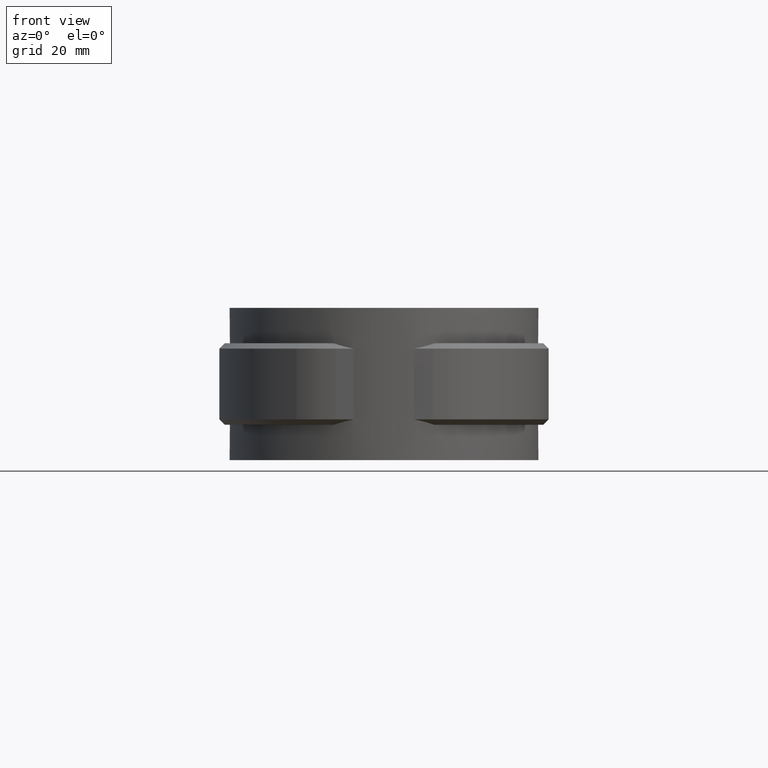
[diagram: clean part render]
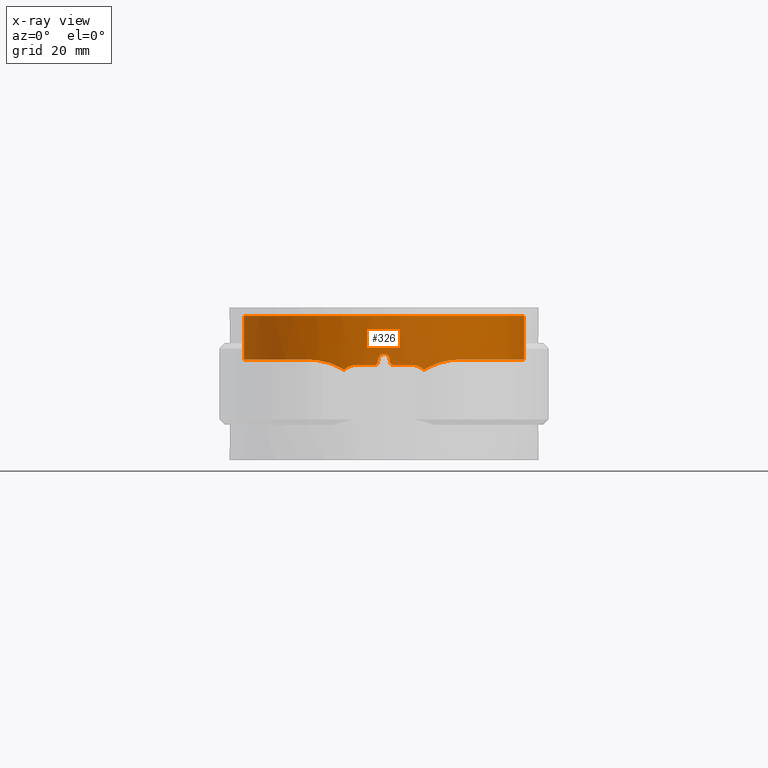
[diagram: x-ray — body ghosted, one internal face saturated and labeled with its STEP entity id]
A machine part, front view, then the same camera in x-ray: the body is ghosted and one INTERNAL B-rep face — a face not visible from any outside direction — is saturated and labeled: STEP entity #326.
In plain terms, the highlighted cylindrical surface (partial cylindrical patch) has radius 25.8 mm, axis along (0, 0, 1).
Its self-contained STEP definition (entity closure, byte-faithful):
#326 = ADVANCED_FACE( '', ( #575 ), #576, .F. );
#575 = FACE_OUTER_BOUND( '', #1265, .T. );
#576 = CYLINDRICAL_SURFACE( '', #1266, 25.8000000000000 );
#1265 = EDGE_LOOP( '', ( #2530, #2531, #2532, #2533, #2534, #2535, #2536, #2537, #2538, #2539, #2540, #2541, #2542, #2543, #2544, #2545, #2546, #2547 ) );
#1266 = AXIS2_PLACEMENT_3D( '', #2548, #2549, #2550 );
#2530 = ORIENTED_EDGE( '', *, *, #5572, .T. );
#2531 = ORIENTED_EDGE( '', *, *, #5537, .T. );
#2532 = ORIENTED_EDGE( '', *, *, #5539, .T. );
#2533 = ORIENTED_EDGE( '', *, *, #5573, .T. );
#2534 = ORIENTED_EDGE( '', *, *, #5574, .T. );
#2535 = ORIENTED_EDGE( '', *, *, #5575, .T. );
#2536 = ORIENTED_EDGE( '', *, *, #5576, .T. );
#2537 = ORIENTED_EDGE( '', *, *, #5577, .T. );
#2538 = ORIENTED_EDGE( '', *, *, #5578, .T. );
#2539 = ORIENTED_EDGE( '', *, *, #5579, .T. );
#2540 = ORIENTED_EDGE( '', *, *, #5580, .T. );
#2541 = ORIENTED_EDGE( '', *, *, #5581, .T. );
#2542 = ORIENTED_EDGE( '', *, *, #5559, .T. );
#2543 = ORIENTED_EDGE( '', *, *, #5582, .F. );
#2544 = ORIENTED_EDGE( '', *, *, #5524, .T. );
#2545 = ORIENTED_EDGE( '', *, *, #5583, .T. );
#2546 = ORIENTED_EDGE( '', *, *, #5555, .T. );
#2547 = ORIENTED_EDGE( '', *, *, #5567, .T. );
#2548 = CARTESIAN_POINT( '', ( 0.000000000000000, 0.000000000000000, 0.000000000000000 ) );
#2549 = DIRECTION( '', ( 0.000000000000000, 0.000000000000000, 1.00000000000000 ) );
#2550 = DIRECTION( '', ( 1.00000000000000, -6.12303176911189E-017, 0.000000000000000 ) );
#5524 = EDGE_CURVE( '', #6208, #6206, #6209, .T. );
#5537 = EDGE_CURVE( '', #6214, #6231, #6233, .T. );
#5539 = EDGE_CURVE( '', #6231, #6234, #6236, .T. );
#5555 = EDGE_CURVE( '', #6264, #6262, #6265, .T. );
#5559 = EDGE_CURVE( '', #6271, #6272, #6273, .T. );
#5567 = EDGE_CURVE( '', #6262, #6285, #6287, .T. );
#5572 = EDGE_CURVE( '', #6285, #6214, #6295, .T. );
#5573 = EDGE_CURVE( '', #6234, #6296, #6297, .T. );
#5574 = EDGE_CURVE( '', #6296, #6298, #6299, .T. );
#5575 = EDGE_CURVE( '', #6298, #6300, #6301, .T. );
#5576 = EDGE_CURVE( '', #6300, #6302, #6303, .T. );
#5577 = EDGE_CURVE( '', #6302, #6304, #6305, .T. );
#5578 = EDGE_CURVE( '', #6304, #6306, #6307, .T. );
#5579 = EDGE_CURVE( '', #6306, #6308, #6309, .T. );
#5580 = EDGE_CURVE( '', #6308, #6310, #6311, .T. );
#5581 = EDGE_CURVE( '', #6310, #6271, #6312, .T. );
#5582 = EDGE_CURVE( '', #6208, #6272, #6313, .T. );
#5583 = EDGE_CURVE( '', #6206, #6264, #6314, .T. );
#6206 = VERTEX_POINT( '', #7462 );
#6208 = VERTEX_POINT( '', #7464 );
#6209 = CIRCLE( '', #7465, 25.8000000000000 );
#6214 = VERTEX_POINT( '', #7471 );
#6231 = VERTEX_POINT( '', #7545 );
#6233 = B_SPLINE_CURVE_WITH_KNOTS( '', 3, ( #7548, #7549, #7550, #7551, #7552, #7553, #7554, #7555, #7556, #7557 ), .UNSPECIFIED., .F., .F., ( 4, 2, 2, 2, 4 ), ( 0.00847385294775890, 0.00913614341819713, 0.00979843388863536, 0.0104607243590736, 0.0111230148295118 ), .UNSPECIFIED. );
#6234 = VERTEX_POINT( '', #7558 );
#6236 = CIRCLE( '', #7561, 25.8000000000000 );
#6262 = VERTEX_POINT( '', #7847 );
#6264 = VERTEX_POINT( '', #7855 );
#6265 = B_SPLINE_CURVE_WITH_KNOTS( '', 3, ( #7856, #7857, #7858, #7859, #7860, #7861, #7862, #7863, #7864, #7865, #7866, #7867, #7868, #7869, #7870, #7871, #7872, #7873, #7874, #7875, #7876, #7877, #7878, #7879, #7880, #7881, #7882, #7883, #7884, #7885, #7886, #7887, #7888, #7889, #7890, #7891, #7892, #7893, #7894, #7895, #7896, #7897, #7898, #7899, #7900, #7901 ), .UNSPECIFIED., .F., .F., ( 4, 2, 2, 2, 2, 2, 2, 2, 2, 2, 2, 2, 2, 2, 2, 2, 2, 2, 2, 2, 2, 2, 4 ), ( 3.46944695195361E-018, 0.00373618031947293, 0.00747236063894587, 0.00934045079868233, 0.0112085409584188, 0.0149447212778917, 0.0168128114376282, 0.0186809015973647, 0.0224170819168376, 0.0242851720765741, 0.0261532622363106, 0.0298894425557836, 0.0336256228752565, 0.0354937130349930, 0.0373618031947295, 0.0410979835142024, 0.0429660736739389, 0.0448341638336754, 0.0485703441531484, 0.0504384343128848, 0.0523065244726213, 0.0560427047920943, 0.0597788851115672 ), .UNSPECIFIED. );
#6271 = VERTEX_POINT( '', #7937 );
#6272 = VERTEX_POINT( '', #7938 );
#6273 = B_SPLINE_CURVE_WITH_KNOTS( '', 3, ( #7939, #7940, #7941, #7942, #7943, #7944, #7945, #7946, #7947, #7948, #7949, #7950, #7951, #7952, #7953, #7954, #7955, #7956, #7957, #7958, #7959, #7960, #7961, #7962, #7963, #7964, #7965, #7966, #7967, #7968, #7969, #7970, #7971, #7972, #7973, #7974, #7975, #7976, #7977, #7978, #7979, #7980, #7981, #7982, #7983, #7984 ), .UNSPECIFIED., .F., .F., ( 4, 2, 2, 2, 2, 2, 2, 2, 2, 2, 2, 2, 2, 2, 2, 2, 2, 2, 2, 2, 2, 2, 4 ), ( 9.81307786677359E-018, 0.00373617763623475, 0.00747235527246950, 0.00934044409058687, 0.0112085329087042, 0.0149447105449390, 0.0168127993630564, 0.0186808881811737, 0.0224170658174085, 0.0242851546355259, 0.0261532434536433, 0.0298894210898780, 0.0336255987261128, 0.0354936875442301, 0.0373617763623475, 0.0410979539985822, 0.0429660428166996, 0.0448341316348170, 0.0485703092710517, 0.0504383980891691, 0.0523064869072865, 0.0560426645435212, 0.0597788421797560 ), .UNSPECIFIED. );
#6285 = VERTEX_POINT( '', #8081 );
#6287 = B_SPLINE_CURVE_WITH_KNOTS( '', 3, ( #8087, #8088, #8089, #8090, #8091, #8092, #8093, #8094, #8095, #8096 ), .UNSPECIFIED., .F., .F., ( 4, 2, 2, 2, 4 ), ( 0.000000000000000, 0.00171733910747662, 0.00343467821495323, 0.00515201732242985, 0.00686935642990647 ), .UNSPECIFIED. );
#6295 = B_SPLINE_CURVE_WITH_KNOTS( '', 3, ( #8125, #8126, #8127, #8128 ), .UNSPECIFIED., .F., .F., ( 4, 4 ), ( 7.11061015606816E-016, 0.000883886196938729 ), .UNSPECIFIED. );
#6296 = VERTEX_POINT( '', #8129 );
#6297 = B_SPLINE_CURVE_WITH_KNOTS( '', 3, ( #8130, #8131, #8132, #8133, #8134, #8135 ), .UNSPECIFIED., .F., .F., ( 4, 2, 4 ), ( 8.20849171219253E-018, 0.000336076006616285, 0.000672152013232562 ), .UNSPECIFIED. );
#6298 = VERTEX_POINT( '', #8136 );
#6299 = ELLIPSE( '', #8137, 117.533393289804, 25.8000000000000 );
#6300 = VERTEX_POINT( '', #8138 );
#6301 = B_SPLINE_CURVE_WITH_KNOTS( '', 3, ( #8139, #8140, #8141, #8142, #8143, #8144, #8145, #8146, #8147, #8148 ), .UNSPECIFIED., .F., .F., ( 4, 2, 2, 2, 4 ), ( 1.08420217248550E-019, 0.000671617565681660, 0.00134323513136332, 0.00201485269704498, 0.00268647026272664 ), .UNSPECIFIED. );
#6302 = VERTEX_POINT( '', #8149 );
#6303 = ELLIPSE( '', #8150, 117.533453246316, 25.8000000000000 );
#6304 = VERTEX_POINT( '', #8151 );
#6305 = B_SPLINE_CURVE_WITH_KNOTS( '', 3, ( #8152, #8153, #8154, #8155, #8156, #8157 ), .UNSPECIFIED., .F., .F., ( 4, 2, 4 ), ( 2.04566856771261E-018, 0.000336081783648389, 0.000672163567296775 ), .UNSPECIFIED. );
#6306 = VERTEX_POINT( '', #8158 );
#6307 = CIRCLE( '', #8159, 25.8000000000000 );
#6308 = VERTEX_POINT( '', #8160 );
#6309 = B_SPLINE_CURVE_WITH_KNOTS( '', 3, ( #8161, #8162, #8163, #8164, #8165, #8166, #8167, #8168, #8169, #8170 ), .UNSPECIFIED., .F., .F., ( 4, 2, 2, 2, 4 ), ( 2.60208521396521E-018, 0.000662919875601351, 0.00132583975120270, 0.00198875962680405, 0.00265167950240540 ), .UNSPECIFIED. );
#6310 = VERTEX_POINT( '', #8171 );
#6311 = B_SPLINE_CURVE_WITH_KNOTS( '', 3, ( #8172, #8173, #8174, #8175 ), .UNSPECIFIED., .F., .F., ( 4, 4 ), ( 0.00814114400030311, 0.00902205076331049 ), .UNSPECIFIED. );
#6312 = B_SPLINE_CURVE_WITH_KNOTS( '', 3, ( #8176, #8177, #8178, #8179, #8180, #8181, #8182, #8183, #8184, #8185 ), .UNSPECIFIED., .F., .F., ( 4, 2, 2, 2, 4 ), ( 0.000000000000000, 0.00170899834983024, 0.00341799669966047, 0.00512699504949071, 0.00683599339932094 ), .UNSPECIFIED. );
#6313 = LINE( '', #8186, #8187 );
#6314 = LINE( '', #8188, #8189 );
#7462 = CARTESIAN_POINT( '', ( 6.03237410071943, 25.0848652120949, 0.000000000000000 ) );
#7464 = CARTESIAN_POINT( '', ( -6.03237410071944, 25.0848652120949, 0.000000000000000 ) );
#7465 = AXIS2_PLACEMENT_3D( '', #11178, #11179, #11180 );
#7471 = CARTESIAN_POINT( '', ( 7.36770156713656, -24.7256339376286, -9.92240629870049 ) );
#7545 = CARTESIAN_POINT( '', ( 5.00000000000000, -25.3108672312902, -9.00000000000000 ) );
#7548 = CARTESIAN_POINT( '', ( 7.36770156713660, -24.7256339376286, -9.92240629870043 ) );
#7549 = CARTESIAN_POINT( '', ( 7.20768725923874, -24.7733147238943, -9.77542187389251 ) );
#7550 = CARTESIAN_POINT( '', ( 7.03611587404372, -24.8227539171649, -9.64504375721799 ) );
#7551 = CARTESIAN_POINT( '', ( 6.67007827215876, -24.9236051659540, -9.41659578297038 ) );
#7552 = CARTESIAN_POINT( '', ( 6.47382625859016, -24.9754378902383, -9.31811712369700 ) );
#7553 = CARTESIAN_POINT( '', ( 6.07189689829047, -25.0761837665163, -9.16120088677748 ) );
#7554 = CARTESIAN_POINT( '', ( 5.86504202007062, -25.1254630968022, -9.10166789016048 ) );
#7555 = CARTESIAN_POINT( '', ( 5.43923193058691, -25.2210699561150, -9.02091475580043 ) );
#7556 = CARTESIAN_POINT( '', ( 5.21976287136961, -25.2674544810748, -8.99999999999997 ) );
#7557 = CARTESIAN_POINT( '', ( 5.00000000000000, -25.3108672312902, -8.99999999999997 ) );
#7558 = CARTESIAN_POINT( '', ( 1.64999999999995, -25.7471843120758, -9.00000000000000 ) );
#7561 = AXIS2_PLACEMENT_3D( '', #11188, #11189, #11190 );
#7847 = CARTESIAN_POINT( '', ( 14.0746045988059, -21.6228005907485, -8.00316201356002 ) );
#7855 = CARTESIAN_POINT( '', ( 6.03237410071944, 25.0848652120949, -8.00421859647345 ) );
#7856 = CARTESIAN_POINT( '', ( 6.03237410071942, 25.0848652120949, -8.00421859647343 ) );
#7857 = CARTESIAN_POINT( '', ( 7.26068028571261, 24.7894838195517, -8.00544838312871 ) );
#7858 = CARTESIAN_POINT( '', ( 8.45213205266304, 24.4080579795106, -8.00701797057330 ) );
#7859 = CARTESIAN_POINT( '', ( 10.7643649610826, 23.4802103387390, -8.00789522628143 ) );
#7860 = CARTESIAN_POINT( '', ( 11.8851383455205, 22.9337704286318, -8.00721043540803 ) );
#7861 = CARTESIAN_POINT( '', ( 13.5121261110203, 21.9876336346415, -8.00533507802577 ) );
#7862 = CARTESIAN_POINT( '', ( 14.0475094696409, 21.6495534350301, -8.00459736652658 ) );
#7863 = CARTESIAN_POINT( '', ( 15.0858771380485, 20.9392453830500, -8.00344518684758 ) );
#7864 = CARTESIAN_POINT( '', ( 15.5893780365250, 20.5669859111848, -8.00307121611898 ) );
#7865 = CARTESIAN_POINT( '', ( 17.0539102108764, 19.4000673881720, -8.00324725469724 ) );
#7866 = CARTESIAN_POINT( '', ( 17.9692068879716, 18.5555254471872, -8.00456444818308 ) );
#7867 = CARTESIAN_POINT( '', ( 19.2504369275996, 17.1886782009989, -8.00562225454128 ) );
#7868 = CARTESIAN_POINT( '', ( 19.6621689044348, 16.7163258541374, -8.00584695541366 ) );
#7869 = CARTESIAN_POINT( '', ( 20.4541782167481, 15.7373132893048, -8.00590098524754 ) );
#7870 = CARTESIAN_POINT( '', ( 20.8336421104671, 15.2312946191079, -8.00572816411906 ) );
#7871 = CARTESIAN_POINT( '', ( 21.9063658924988, 13.6866011422974, -8.00477663601862 ) );
#7872 = CARTESIAN_POINT( '', ( 22.5408267318255, 12.6136228621821, -8.00346869992973 ) );
#7873 = CARTESIAN_POINT( '', ( 23.3737383452074, 10.9405869877108, -8.00305964478180 ) );
#7874 = CARTESIAN_POINT( '', ( 23.6315002028938, 10.3722714708539, -8.00331003816414 ) );
#7875 = CARTESIAN_POINT( '', ( 24.1066988378430, 9.21405928166303, -8.00422816277125 ) );
#7876 = CARTESIAN_POINT( '', ( 24.3245104117547, 8.62301146299956, -8.00485155523670 ) );
#7877 = CARTESIAN_POINT( '', ( 24.9131778138079, 6.82393618580402, -8.00648074527607 ) );
#7878 = CARTESIAN_POINT( '', ( 25.2134222870090, 5.61023799728685, -8.00710157738204 ) );
#7879 = CARTESIAN_POINT( '', ( 25.6366033037460, 3.15531374915431, -8.00637479135126 ) );
#7880 = CARTESIAN_POINT( '', ( 25.7595258191951, 1.91408551083722, -8.00503048875464 ) );
#7881 = CARTESIAN_POINT( '', ( 25.8076201398247, 0.0310831410522792, -8.00350455443992 ) );
#7882 = CARTESIAN_POINT( '', ( 25.8006211446675, -0.602429536608931, -8.00311877270820 ) );
#7883 = CARTESIAN_POINT( '', ( 25.7406884620227, -1.85793710828312, -8.00319741707570 ) );
#7884 = CARTESIAN_POINT( '', ( 25.6879657950527, -2.48147131136124, -8.00358598945745 ) );
#7885 = CARTESIAN_POINT( '', ( 25.4629977867101, -4.33968777006187, -8.00492496893899 ) );
#7886 = CARTESIAN_POINT( '', ( 25.2242963534625, -5.56204767092466, -8.00594267936942 ) );
#7887 = CARTESIAN_POINT( '', ( 24.7326013388371, -7.37080770468106, -8.00611389959975 ) );
#7888 = CARTESIAN_POINT( '', ( 24.5463436228588, -7.96958187379111, -8.00597151630470 ) );
#7889 = CARTESIAN_POINT( '', ( 24.1279280144699, -9.15861944962663, -8.00535992492283 ) );
#7890 = CARTESIAN_POINT( '', ( 23.8965456258034, -9.74615393389852, -8.00489206242498 ) );
#7891 = CARTESIAN_POINT( '', ( 23.1448142253165, -11.4685313738498, -8.00348680900644 ) );
#7892 = CARTESIAN_POINT( '', ( 22.5644432085294, -12.5713524115484, -8.00277801196227 ) );
#7893 = CARTESIAN_POINT( '', ( 21.5769460371601, -14.1585186160504, -8.00401119041424 ) );
#7894 = CARTESIAN_POINT( '', ( 21.2282131341587, -14.6763522786011, -8.00461999141825 ) );
#7895 = CARTESIAN_POINT( '', ( 20.4909914895077, -15.6892197655520, -8.00570811993847 ) );
#7896 = CARTESIAN_POINT( '', ( 20.1012321410512, -16.1857328639174, -8.00618751382072 ) );
#7897 = CARTESIAN_POINT( '', ( 18.8793839121942, -17.6294864025608, -8.00697515163917 ) );
#7898 = CARTESIAN_POINT( '', ( 18.0029635594343, -18.5227607714454, -8.00650357444221 ) );
#7899 = CARTESIAN_POINT( '', ( 16.1299631380105, -20.1748272033478, -8.00444573249523 ) );
#7900 = CARTESIAN_POINT( '', ( 15.1333867818155, -20.9336234178111, -8.00285361401559 ) );
#7901 = CARTESIAN_POINT( '', ( 14.0746045988058, -21.6228005907485, -8.00316201355999 ) );
#7937 = CARTESIAN_POINT( '', ( -14.0746045988059, -21.6228005907485, -8.00316201356002 ) );
#7938 = CARTESIAN_POINT( '', ( -6.03237410071941, 25.0848652120949, -8.00421859647343 ) );
#7939 = CARTESIAN_POINT( '', ( -14.0746045988059, -21.6228005907485, -8.00316201356007 ) );
#7940 = CARTESIAN_POINT( '', ( -15.1333869034552, -20.9336233386340, -8.00285361398024 ) );
#7941 = CARTESIAN_POINT( '', ( -16.1286590915959, -20.1756829817981, -8.00444351331206 ) );
#7942 = CARTESIAN_POINT( '', ( -17.9974199617546, -18.5279438307432, -8.00649826732587 ) );
#7943 = CARTESIAN_POINT( '', ( -18.8708952578265, -17.6381305472235, -8.00697221119571 ) );
#7944 = CARTESIAN_POINT( '', ( -20.0877556595109, -16.2023349188312, -8.00620031617392 ) );
#7945 = CARTESIAN_POINT( '', ( -20.4792375666224, -15.7046653910953, -8.00572391010486 ) );
#7946 = CARTESIAN_POINT( '', ( -21.2202480234852, -14.6879801258782, -8.00463326545930 ) );
#7947 = CARTESIAN_POINT( '', ( -21.5702524945042, -14.1687622732477, -8.00402173339329 ) );
#7948 = CARTESIAN_POINT( '', ( -22.5601732933537, -12.5792308629640, -8.00277903396344 ) );
#7949 = CARTESIAN_POINT( '', ( -23.1403053144642, -11.4772030165014, -8.00347968288031 ) );
#7950 = CARTESIAN_POINT( '', ( -23.8906133537362, -9.76056214387442, -8.00488033213110 ) );
#7951 = CARTESIAN_POINT( '', ( -24.1206574138140, -9.17770784552322, -8.00534659262012 ) );
#7952 = CARTESIAN_POINT( '', ( -24.5396280094886, -7.99018726490686, -8.00596431612964 ) );
#7953 = CARTESIAN_POINT( '', ( -24.7280028918479, -7.38639645245477, -8.00611246593056 ) );
#7954 = CARTESIAN_POINT( '', ( -25.2223318830471, -5.57188412206545, -8.00594933163577 ) );
#7955 = CARTESIAN_POINT( '', ( -25.4614001083746, -4.34850014713748, -8.00493293337967 ) );
#7956 = CARTESIAN_POINT( '', ( -25.6868025741090, -2.49324302282103, -8.00359367513219 ) );
#7957 = CARTESIAN_POINT( '', ( -25.7396484485914, -1.87144706959028, -8.00320440767271 ) );
#7958 = CARTESIAN_POINT( '', ( -25.8001195905802, -0.621003625682371, -8.00311394769907 ) );
#7959 = CARTESIAN_POINT( '', ( -25.8077131099012, 0.00885291084441690, -8.00348911961148 ) );
#7960 = CARTESIAN_POINT( '', ( -25.7607831144393, 1.90120768954985, -8.00501500809569 ) );
#7961 = CARTESIAN_POINT( '', ( -25.6378177513319, 3.14543096940045, -8.00636745856395 ) );
#7962 = CARTESIAN_POINT( '', ( -25.2155828913343, 5.60051912629720, -8.00710307200058 ) );
#7963 = CARTESIAN_POINT( '', ( -24.9162994156386, 6.81138135822010, -8.00648884303230 ) );
#7964 = CARTESIAN_POINT( '', ( -24.3318565661995, 8.60203343321275, -8.00487215116755 ) );
#7965 = CARTESIAN_POINT( '', ( -24.1133831145785, 9.19672379235804, -8.00424471066269 ) );
#7966 = CARTESIAN_POINT( '', ( -23.6369981620119, 10.3598885916987, -8.00331711924920 ) );
#7967 = CARTESIAN_POINT( '', ( -23.3787710228885, 10.9298834678381, -8.00306050024976 ) );
#7968 = CARTESIAN_POINT( '', ( -22.5452790238145, 12.6058534968097, -8.00345994521201 ) );
#7969 = CARTESIAN_POINT( '', ( -21.9115063398552, 13.6779892503443, -8.00476747713705 ) );
#7970 = CARTESIAN_POINT( '', ( -20.8431886127966, 15.2181425757185, -8.00572195685283 ) );
#7971 = CARTESIAN_POINT( '', ( -20.4673975881742, 15.7201417254844, -8.00589763630383 ) );
#7972 = CARTESIAN_POINT( '', ( -19.6754052329038, 16.7007679111691, -8.00585196955021 ) );
#7973 = CARTESIAN_POINT( '', ( -19.2608462862721, 17.1770838694947, -8.00562927483305 ) );
#7974 = CARTESIAN_POINT( '', ( -17.9763559965235, 18.5488615493912, -8.00457344756959 ) );
#7975 = CARTESIAN_POINT( '', ( -17.0605686434363, 19.3940711707312, -8.00325604261762 ) );
#7976 = CARTESIAN_POINT( '', ( -15.5991114250348, 20.5595713112542, -8.00306844564856 ) );
#7977 = CARTESIAN_POINT( '', ( -15.0972718058432, 20.9309515522717, -8.00343531100326 ) );
#7978 = CARTESIAN_POINT( '', ( -14.0637517181760, 21.6389287274707, -8.00457664906139 ) );
#7979 = CARTESIAN_POINT( '', ( -13.5303795565576, 21.9764945305707, -8.00531188503511 ) );
#7980 = CARTESIAN_POINT( '', ( -11.8960292207845, 22.9284630964466, -8.00720209548951 ) );
#7981 = CARTESIAN_POINT( '', ( -10.7713225565966, 23.4771799165608, -8.00789555102751 ) );
#7982 = CARTESIAN_POINT( '', ( -8.45364679338599, 24.4076877713864, -8.00702085176591 ) );
#7983 = CARTESIAN_POINT( '', ( -7.26067979377365, 24.7894839378526, -8.00544838263619 ) );
#7984 = CARTESIAN_POINT( '', ( -6.03237410071941, 25.0848652120949, -8.00421859647343 ) );
#8081 = CARTESIAN_POINT( '', ( 8.09912282365073, -24.4957998335916, -9.48095950445834 ) );
#8087 = CARTESIAN_POINT( '', ( 14.0746045988059, -21.6228005907485, -8.00316201356003 ) );
#8088 = CARTESIAN_POINT( '', ( 13.5933316659828, -21.9360683474003, -8.01205812006769 ) );
#8089 = CARTESIAN_POINT( '', ( 13.1039277943613, -22.2317738655920, -8.04378504747904 ) );
#8090 = CARTESIAN_POINT( '', ( 12.1096078854509, -22.7886394879395, -8.15741144226582 ) );
#8091 = CARTESIAN_POINT( '', ( 11.6033085274296, -23.0503512025027, -8.23960686606617 ) );
#8092 = CARTESIAN_POINT( '', ( 10.5891936704272, -23.5334748125223, -8.46483333514526 ) );
#8093 = CARTESIAN_POINT( '', ( 10.0777407759014, -23.7565423147445, -8.60845486933235 ) );
#8094 = CARTESIAN_POINT( '', ( 9.07045988660652, -24.1590752998531, -8.97584538473676 ) );
#8095 = CARTESIAN_POINT( '', ( 8.57539099517002, -24.3383298001851, -9.19776237732006 ) );
#8096 = CARTESIAN_POINT( '', ( 8.09912282365083, -24.4957998335922, -9.48095950445951 ) );
#8125 = CARTESIAN_POINT( '', ( 8.09912282365084, -24.4957998335923, -9.48095950445954 ) );
#8126 = CARTESIAN_POINT( '', ( 7.85298416235659, -24.5771814281111, -9.62242073317317 ) );
#8127 = CARTESIAN_POINT( '', ( 7.60882860535630, -24.6537833204978, -9.76904265677678 ) );
#8128 = CARTESIAN_POINT( '', ( 7.36770156713655, -24.7256339376286, -9.92240629870048 ) );
#8129 = CARTESIAN_POINT( '', ( 1.16219499999999, -25.7738104047883, -8.60975599999999 ) );
#8130 = CARTESIAN_POINT( '', ( 1.64999999999995, -25.7471843120758, -8.99999999999995 ) );
#8131 = CARTESIAN_POINT( '', ( 1.53659676879307, -25.7544517215611, -9.00000000048667 ) );
#8132 = CARTESIAN_POINT( '', ( 1.42648268482783, -25.7606877134254, -8.96144045921542 ) );
#8133 = CARTESIAN_POINT( '', ( 1.24913421574478, -25.7698961586925, -8.81967787855504 ) );
#8134 = CARTESIAN_POINT( '', ( 1.18713939444587, -25.7726856098881, -8.72061997753684 ) );
#8135 = CARTESIAN_POINT( '', ( 1.16219499999999, -25.7738104047883, -8.60975599999999 ) );
#8136 = CARTESIAN_POINT( '', ( 0.975609757981813, -25.7815473856813, -7.78048781325256 ) );
#8137 = AXIS2_PLACEMENT_3D( '', #11191, #11192, #11193 );
#8138 = CARTESIAN_POINT( '', ( -0.975610000000026, -25.7815473765230, -7.78048800000004 ) );
#8139 = CARTESIAN_POINT( '', ( 0.975609757981816, -25.7815473856813, -7.78048781325256 ) );
#8140 = CARTESIAN_POINT( '', ( 0.925760723739448, -25.7834337427531, -7.55893664008494 ) );
#8141 = CARTESIAN_POINT( '', ( 0.802002361521335, -25.7881415443926, -7.36098152569801 ) );
#8142 = CARTESIAN_POINT( '', ( 0.447411547054208, -25.7967299285990, -7.07729999000686 ) );
#8143 = CARTESIAN_POINT( '', ( 0.227096393989775, -25.8000000079439, -6.99999981432398 ) );
#8144 = CARTESIAN_POINT( '', ( -0.227098198963333, -25.7999999920561, -7.00000017880908 ) );
#8145 = CARTESIAN_POINT( '', ( -0.447440716005387, -25.7967293170502, -7.07731810023000 ) );
#8146 = CARTESIAN_POINT( '', ( -0.802000802814022, -25.7881414871987, -7.36098518474043 ) );
#8147 = CARTESIAN_POINT( '', ( -0.925761005968289, -25.7834337325418, -7.55893680752233 ) );
#8148 = CARTESIAN_POINT( '', ( -0.975610000000026, -25.7815473765230, -7.78048800000004 ) );
#8149 = CARTESIAN_POINT( '', ( -1.16219512100914, -25.7738103993318, -8.60975609337373 ) );
#8150 = AXIS2_PLACEMENT_3D( '', #11194, #11195, #11196 );
#8151 = CARTESIAN_POINT( '', ( -1.65000000000003, -25.7471843120758, -9.00000000000000 ) );
#8152 = CARTESIAN_POINT( '', ( -1.16219512100915, -25.7738103993318, -8.60975609337372 ) );
#8153 = CARTESIAN_POINT( '', ( -1.18713950714722, -25.7726856046888, -8.72062003620871 ) );
#8154 = CARTESIAN_POINT( '', ( -1.24912830462559, -25.7698964565163, -8.81967210719460 ) );
#8155 = CARTESIAN_POINT( '', ( -1.42648332301461, -25.7606876893872, -8.96144194367223 ) );
#8156 = CARTESIAN_POINT( '', ( -1.53659680002685, -25.7544517195595, -8.99999999999994 ) );
#8157 = CARTESIAN_POINT( '', ( -1.65000000000003, -25.7471843120758, -8.99999999999994 ) );
#8158 = CARTESIAN_POINT( '', ( -5.00000000000005, -25.3108672312902, -9.00000000000000 ) );
#8159 = AXIS2_PLACEMENT_3D( '', #11197, #11198, #11199 );
#8160 = CARTESIAN_POINT( '', ( -7.36770156712420, -24.7256339376233, -9.92240629868903 ) );
#8161 = CARTESIAN_POINT( '', ( -5.00000000000005, -25.3108672312902, -8.99999999999997 ) );
#8162 = CARTESIAN_POINT( '', ( -5.21995528441451, -25.2674164711079, -8.99999999999997 ) );
#8163 = CARTESIAN_POINT( '', ( -5.43584985592567, -25.2217917361868, -9.02054471094434 ) );
#8164 = CARTESIAN_POINT( '', ( -5.86001060049525, -25.1266296546479, -9.10044768057855 ) );
#8165 = CARTESIAN_POINT( '', ( -6.06969867324216, -25.0767292122482, -9.16038888561397 ) );
#8166 = CARTESIAN_POINT( '', ( -6.47473551434311, -24.9752155143391, -9.31842604838392 ) );
#8167 = CARTESIAN_POINT( '', ( -6.66721622070000, -24.9243694670225, -9.41507172844745 ) );
#8168 = CARTESIAN_POINT( '', ( -7.03289440063460, -24.8236653581160, -9.64277534606432 ) );
#8169 = CARTESIAN_POINT( '', ( -7.20770846718971, -24.7733084043857, -9.77544135489216 ) );
#8170 = CARTESIAN_POINT( '', ( -7.36770156712550, -24.7256339376319, -9.92240629869021 ) );
#8171 = CARTESIAN_POINT( '', ( -8.09912282365084, -24.4957998335923, -9.48095950445954 ) );
#8172 = CARTESIAN_POINT( '', ( -7.36770156713405, -24.7256339376293, -9.92240629870193 ) );
#8173 = CARTESIAN_POINT( '', ( -7.60901589127839, -24.6537275133631, -9.76892353761307 ) );
#8174 = CARTESIAN_POINT( '', ( -7.85316249557002, -24.5771224652436, -9.62231824120641 ) );
#8175 = CARTESIAN_POINT( '', ( -8.09912282365084, -24.4957998335923, -9.48095950445953 ) );
#8176 = CARTESIAN_POINT( '', ( -8.09912282365084, -24.4957998335923, -9.48095950445954 ) );
#8177 = CARTESIAN_POINT( '', ( -8.57657903642960, -24.3379369943921, -9.19705594785080 ) );
#8178 = CARTESIAN_POINT( '', ( -9.07081284882140, -24.1588846843103, -8.97583356297612 ) );
#8179 = CARTESIAN_POINT( '', ( -10.0733104340237, -23.7583621453149, -8.60995432834868 ) );
#8180 = CARTESIAN_POINT( '', ( -10.5842856105011, -23.5357052720704, -8.46608512978654 ) );
#8181 = CARTESIAN_POINT( '', ( -11.6001945013900, -23.0519416116809, -8.24013798207931 ) );
#8182 = CARTESIAN_POINT( '', ( -12.1055395017180, -22.7908410417145, -8.15796387919716 ) );
#8183 = CARTESIAN_POINT( '', ( -13.1027216568501, -22.2325258843764, -8.04383582074930 ) );
#8184 = CARTESIAN_POINT( '', ( -13.5929789952992, -21.9362979060277, -8.01206463902135 ) );
#8185 = CARTESIAN_POINT( '', ( -14.0746045988058, -21.6228005907485, -8.00316201355999 ) );
#8186 = CARTESIAN_POINT( '', ( -6.03237410071944, 25.0848652120949, 0.000000000000000 ) );
#8187 = VECTOR( '', #11200, 1000.00000000000 );
#8188 = CARTESIAN_POINT( '', ( 6.03237410071943, 25.0848652120949, 0.000000000000000 ) );
#8189 = VECTOR( '', #11201, 1000.00000000000 );
#11178 = CARTESIAN_POINT( '', ( 0.000000000000000, 0.000000000000000, 0.000000000000000 ) );
#11179 = DIRECTION( '', ( 0.000000000000000, 0.000000000000000, 1.00000000000000 ) );
#11180 = DIRECTION( '', ( 1.00000000000000, -6.12303176911189E-017, 0.000000000000000 ) );
#11188 = CARTESIAN_POINT( '', ( 0.000000000000000, 0.000000000000000, -9.00000000000001 ) );
#11189 = DIRECTION( '', ( 6.12303176911189E-017, -3.13145149531439E-016, -1.00000000000000 ) );
#11190 = DIRECTION( '', ( 0.000000000000000, 1.00000000000000, -3.13145149531439E-016 ) );
#11191 = CARTESIAN_POINT( '', ( 0.000000000000000, 0.000000000000000, -3.44444212055032 ) );
#11192 = DIRECTION( '', ( -0.975609781292647, -1.70596433957388E-016, -0.219512083143762 ) );
#11193 = DIRECTION( '', ( 0.219512083143762, 3.83841770684856E-017, -0.975609781292647 ) );
#11194 = CARTESIAN_POINT( '', ( 0.000000000000000, 0.000000000000000, -3.44443890776446 ) );
#11195 = DIRECTION( '', ( 0.975609806487711, 3.31181834532395E-017, -0.219511971165610 ) );
#11196 = DIRECTION( '', ( -0.219511971165610, -7.45158328965245E-018, -0.975609806487711 ) );
#11197 = CARTESIAN_POINT( '', ( 0.000000000000000, 0.000000000000000, -9.00000000000001 ) );
#11198 = DIRECTION( '', ( 6.12303176911189E-017, -3.13145149531439E-016, -1.00000000000000 ) );
#11199 = DIRECTION( '', ( 0.000000000000000, 1.00000000000000, -3.13145149531439E-016 ) );
#11200 = DIRECTION( '', ( 0.000000000000000, 0.000000000000000, -1.00000000000000 ) );
#11201 = DIRECTION( '', ( 0.000000000000000, 0.000000000000000, -1.00000000000000 ) );